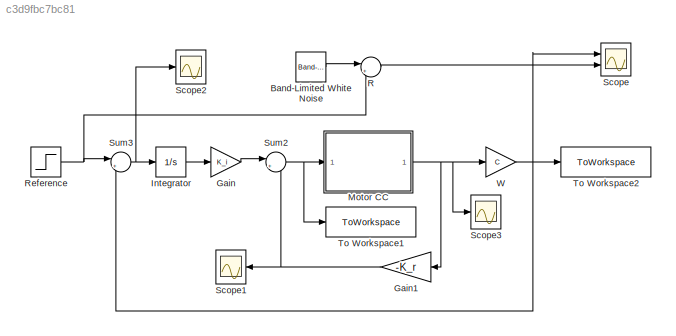
MODEL slx_c3d9fbc7bc81
KIND model
CONFIG AbsTol = auto
CONFIG EnableMultiTasking = off
CONFIG FixedStep = auto
CONFIG MaxStep = auto
CONFIG MinStep = auto
CONFIG RelTol = 1e-3
CONFIG SampleTimeConstraint = Unconstrained
CONFIG SolverName = VariableStepAuto
CONFIG StartTime = 0.0
CONFIG StopTime = 10
BLOCK [Reference] Band-Limited White Noise  REF=simulink/Sources/Band-Limited
White Noise
  Ports = [0, 1]
  SourceBlock = simulink/Sources/Band-Limited\nWhite Noise
  SourceProductBaseCode = SL
  SourceType = Band-Limited White Noise.
BLOCK [Gain] Gain
  Gain = K_i
BLOCK [Gain] Gain1
  Gain = -K_r
  Multiplication = Matrix(K*u)
  NameLocation = top
BLOCK [Integrator] Integrator
  Ports = [1, 1]
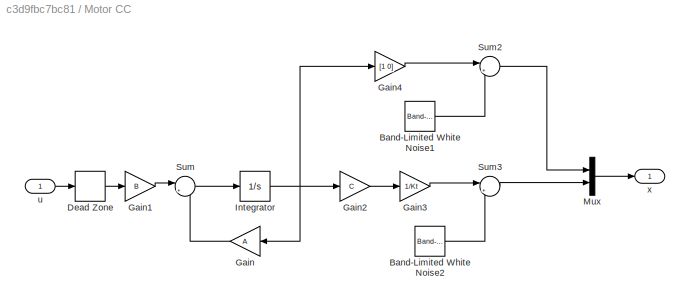
BLOCK [SubSystem] Motor CC
  Ports = [1, 1]
  RequestExecContextInheritance = off
BLOCK [Reference] Motor CC/Band-Limited White Noise1  REF=simulink/Sources/Band-Limited
White Noise
  Ports = [0, 1]
  SourceBlock = simulink/Sources/Band-Limited\nWhite Noise
  SourceProductBaseCode = SL
  SourceType = Band-Limited White Noise.
BLOCK [Reference] Motor CC/Band-Limited White Noise2  REF=simulink/Sources/Band-Limited
White Noise
  Ports = [0, 1]
  SourceBlock = simulink/Sources/Band-Limited\nWhite Noise
  SourceProductBaseCode = SL
  SourceType = Band-Limited White Noise.
BLOCK [DeadZone] Motor CC/Dead Zone
  LowerValue = -3.2
  UpperValue = 3.2
BLOCK [Gain] Motor CC/Gain
  Gain = A
  Multiplication = Matrix(K*u)
  NameLocation = top
BLOCK [Gain] Motor CC/Gain1
  Gain = B
  Multiplication = Matrix(K*u)
BLOCK [Gain] Motor CC/Gain2
  Gain = C
  Multiplication = Matrix(K*u)
BLOCK [Gain] Motor CC/Gain3
  Gain = 1/Kt
BLOCK [Gain] Motor CC/Gain4
  Gain = [1 0]
  Multiplication = Matrix(K*u)
BLOCK [Integrator] Motor CC/Integrator
  InitialCondition = [0;0]
  Ports = [1, 1]
BLOCK [Mux] Motor CC/Mux
  DisplayOption = bar
  Inputs = 2
  Ports = [2, 1]
BLOCK [Sum] Motor CC/Sum
  Inputs = |++
  Ports = [2, 1]
BLOCK [Sum] Motor CC/Sum2
  Inputs = |++
  Ports = [2, 1]
BLOCK [Sum] Motor CC/Sum3
  Inputs = |++
  Ports = [2, 1]
BLOCK [Inport] Motor CC/u
BLOCK [Outport] Motor CC/x
BLOCK [Sum] R
  Inputs = |++
  Ports = [2, 1]
BLOCK [Step] Reference
  After = finalvalue
  Before = initialvalue
  SampleTime = 0
  Time = steptime
BLOCK [Scope] Scope
  Floating = off
  NumInputPorts = 2
  Ports = [2]
  ScopeSpecificationString = Simulink.scopes.TimeScopeBlockCfg('CurrentConfiguration', extmgr.ConfigurationSet(extmgr.Configuration('Core','General UI',true),extmgr.Configuration('Core','Source UI',true),extmgr.Configuration('Sources','WiredSimulink',true),extmgr.Configuration('Visuals','Time Domain',true,'SerializedDisplays',{struct('MinYLimReal','-0.27641','MaxYLimReal','1.34763','YLabelReal','','MinYLimMag','0.00000','MaxY...<+1447ch>
BLOCK [Scope] Scope1
  Floating = off
  NameLocation = top
  NumInputPorts = 1
  Ports = [1]
  ScopeSpecificationString = Simulink.scopes.TimeScopeBlockCfg('CurrentConfiguration', extmgr.ConfigurationSet(extmgr.Configuration('Core','General UI',true),extmgr.Configuration('Core','Source UI',true),extmgr.Configuration('Sources','WiredSimulink',true,'DataLoggingVariableName','ScopeData1'),extmgr.Configuration('Visuals','Time Domain',true,'SerializedDisplays',{struct('MinYLimReal','-0.42252','MaxYLimReal','0.40036','YLab...<+1464ch>
BLOCK [Scope] Scope2
  Floating = off
  NumInputPorts = 1
  Ports = [1]
  ScopeSpecificationString = Simulink.scopes.TimeScopeBlockCfg('CurrentConfiguration', extmgr.ConfigurationSet(extmgr.Configuration('Core','General UI',true),extmgr.Configuration('Core','Source UI',true),extmgr.Configuration('Sources','WiredSimulink',true,'DataLoggingVariableName','ScopeData2'),extmgr.Configuration('Visuals','Time Domain',true,'SerializedDisplays',{struct('MinYLimReal','-10','MaxYLimReal','10','YLabelReal',''...<+2657ch>
BLOCK [Scope] Scope3
  Floating = off
  NumInputPorts = 1
  Ports = [1]
  ScopeSpecificationString = Simulink.scopes.TimeScopeBlockCfg('CurrentConfiguration', extmgr.ConfigurationSet(extmgr.Configuration('Core','General UI',true),extmgr.Configuration('Core','Source UI',true),extmgr.Configuration('Sources','WiredSimulink',true,'DataLoggingVariableName','ScopeData3'),extmgr.Configuration('Visuals','Time Domain',true,'SerializedDisplays',{struct('MinYLimReal','-0.00575','MaxYLimReal','1.03475','YLab...<+1454ch>
BLOCK [Sum] Sum2
  Inputs = |+-
  Ports = [2, 1]
BLOCK [Sum] Sum3
  Inputs = |+-
  Ports = [2, 1]
BLOCK [ToWorkspace] To Workspace1
  FixptAsFi = on
  MaxDataPoints = inf
  Ports = [1]
  SampleTime = -1
  SaveFormat = Structure With Time
  VariableName = u
BLOCK [ToWorkspace] To Workspace2
  FixptAsFi = on
  MaxDataPoints = inf
  Ports = [1]
  SampleTime = -1
  SaveFormat = Structure With Time
  VariableName = W
BLOCK [Gain] W
  Gain = C
  Multiplication = Matrix(K*u)
LINE Band-Limited White Noise:1 -> R:1
NET Gain1:1 -> Scope1:1, Sum2:2
LINE Gain:1 -> Sum2:1
LINE Integrator:1 -> Gain:1
LINE Motor CC/Band-Limited White Noise1:1 -> Motor CC/Sum2:2
LINE Motor CC/Band-Limited White Noise2:1 -> Motor CC/Sum3:2
LINE Motor CC/Dead Zone:1 -> Motor CC/Gain1:1
LINE Motor CC/Gain1:1 -> Motor CC/Sum:1
LINE Motor CC/Gain2:1 -> Motor CC/Gain3:1
LINE Motor CC/Gain3:1 -> Motor CC/Sum3:1
LINE Motor CC/Gain4:1 -> Motor CC/Sum2:1
LINE Motor CC/Gain:1 -> Motor CC/Sum:2
NET Motor CC/Integrator:1 -> Motor CC/Gain2:1, Motor CC/Gain4:1, Motor CC/Gain:1
LINE Motor CC/Mux:1 -> Motor CC/x:1
LINE Motor CC/Sum2:1 -> Motor CC/Mux:1
LINE Motor CC/Sum3:1 -> Motor CC/Mux:2
LINE Motor CC/Sum:1 -> Motor CC/Integrator:1
LINE Motor CC/u:1 -> Motor CC/Dead Zone:1
NET Motor CC:1 -> Gain1:1, Scope3:1, W:1
LINE R:1 -> Scope:2
NET Reference:1 -> R:2, Sum3:1
NET Sum2:1 -> Motor CC:1, To Workspace1:1
NET Sum3:1 -> Integrator:1, Scope2:1
NET W:1 -> Scope:1, Sum3:2, To Workspace2:1
note: NET lines group one-source signal fan-out (src -> all destinations, sorted); 1:1 wires keep LINE
